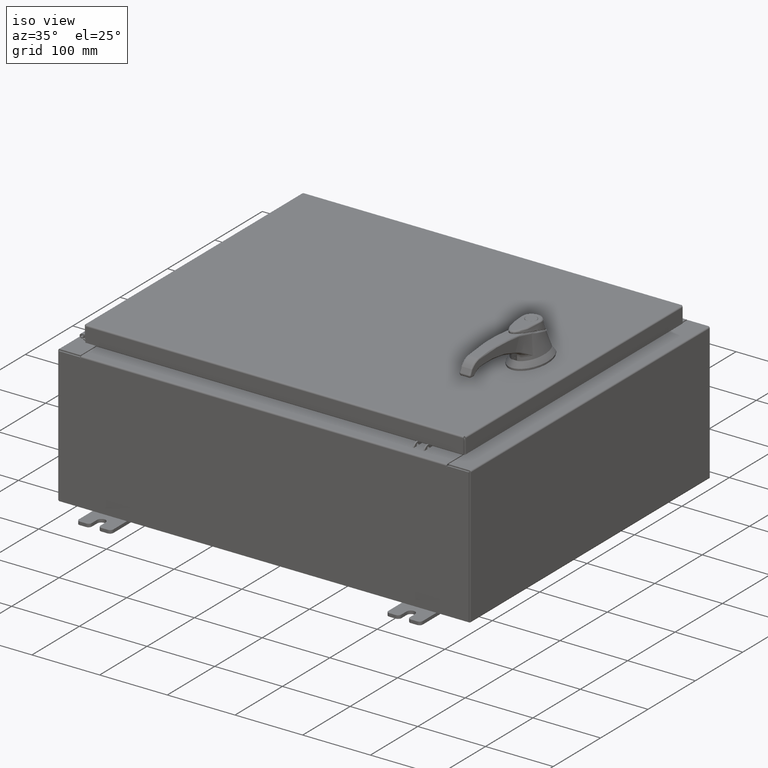
[diagram: clean part render]
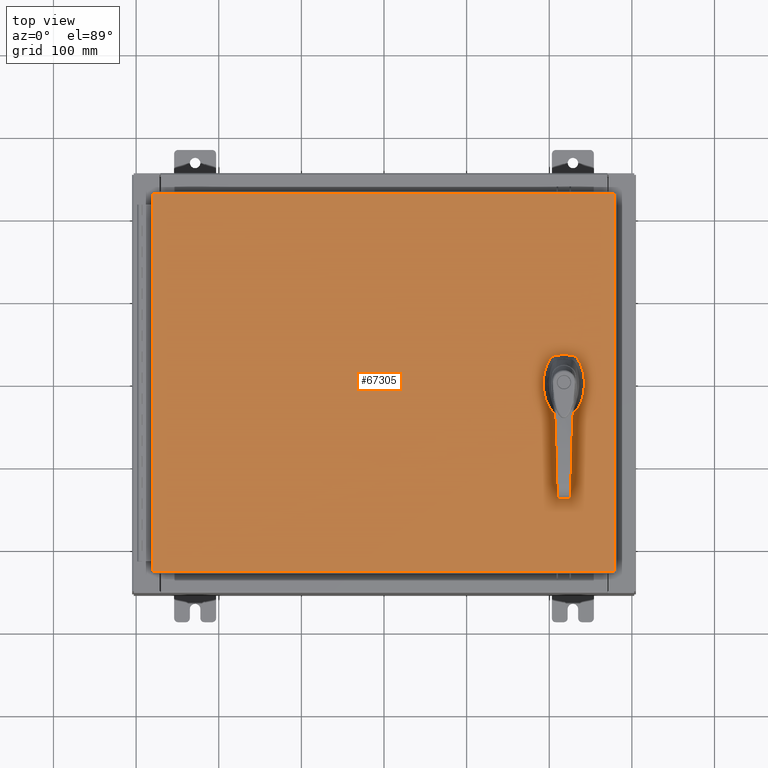
[diagram: tour spotlight — one face highlighted and labeled with its STEP entity id]
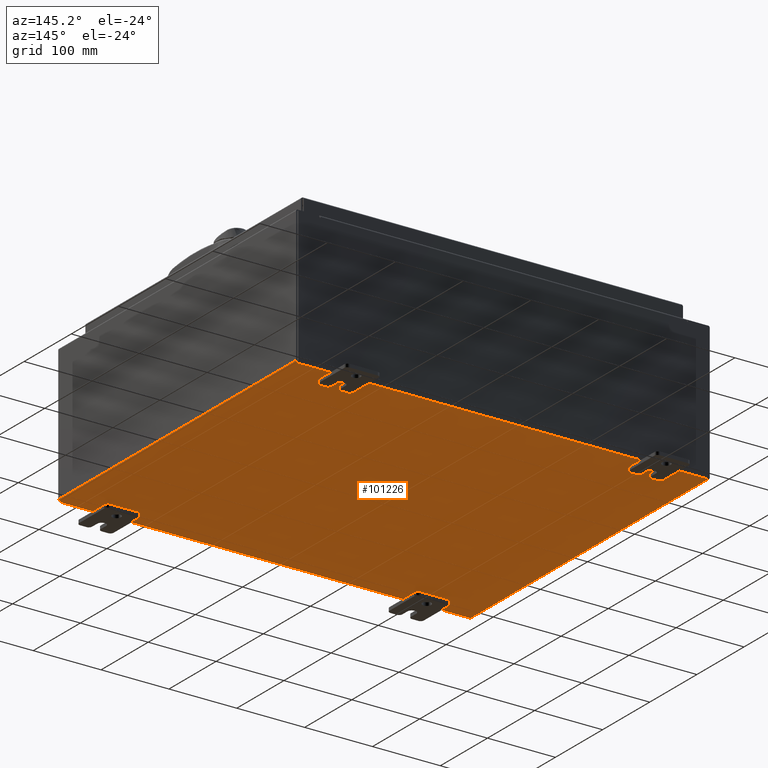
[diagram: tour spotlight — one face highlighted and labeled with its STEP entity id]
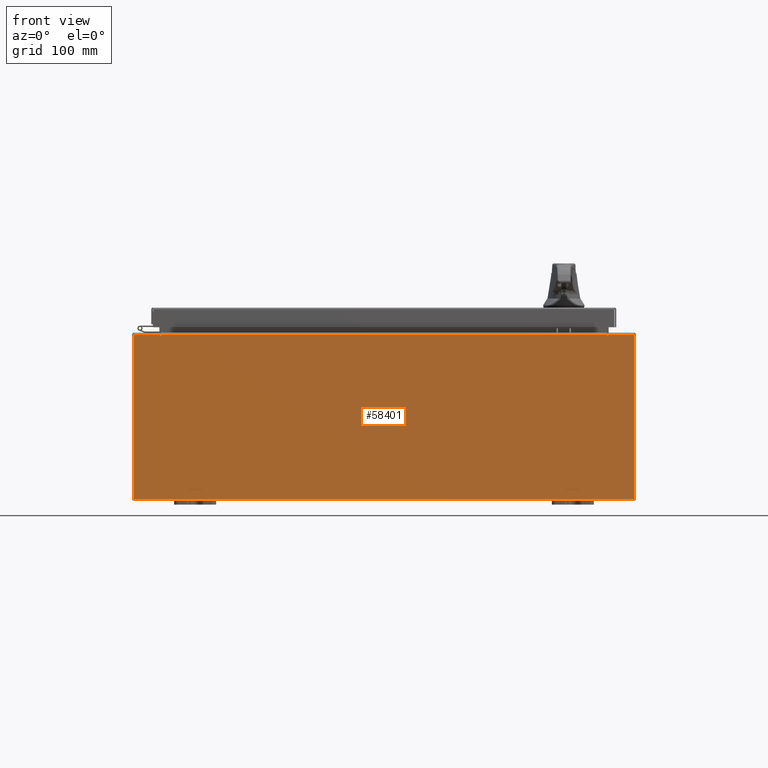
[diagram: tour spotlight — one face highlighted and labeled with its STEP entity id]
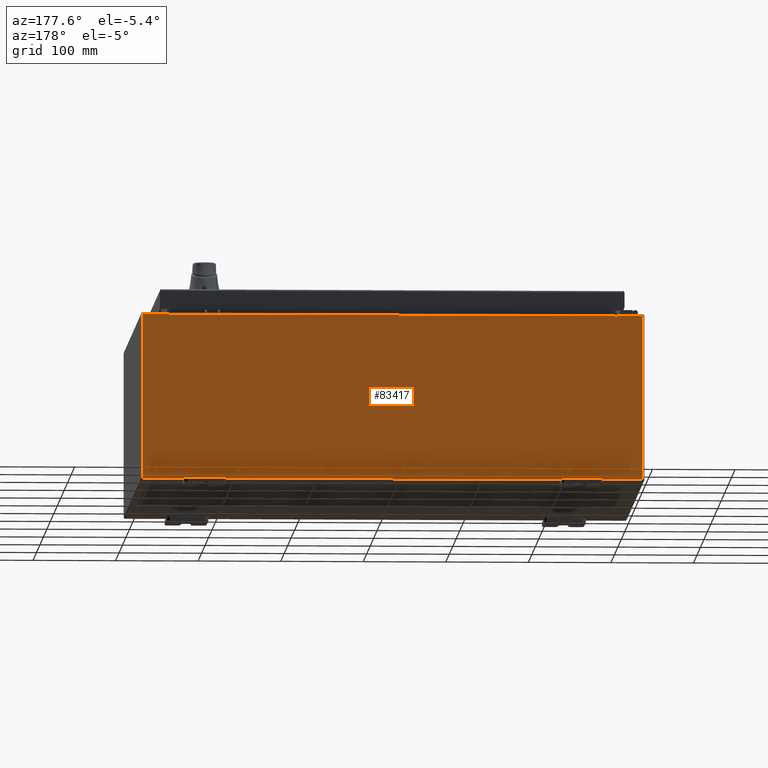
[diagram: tour spotlight — one face highlighted and labeled with its STEP entity id]
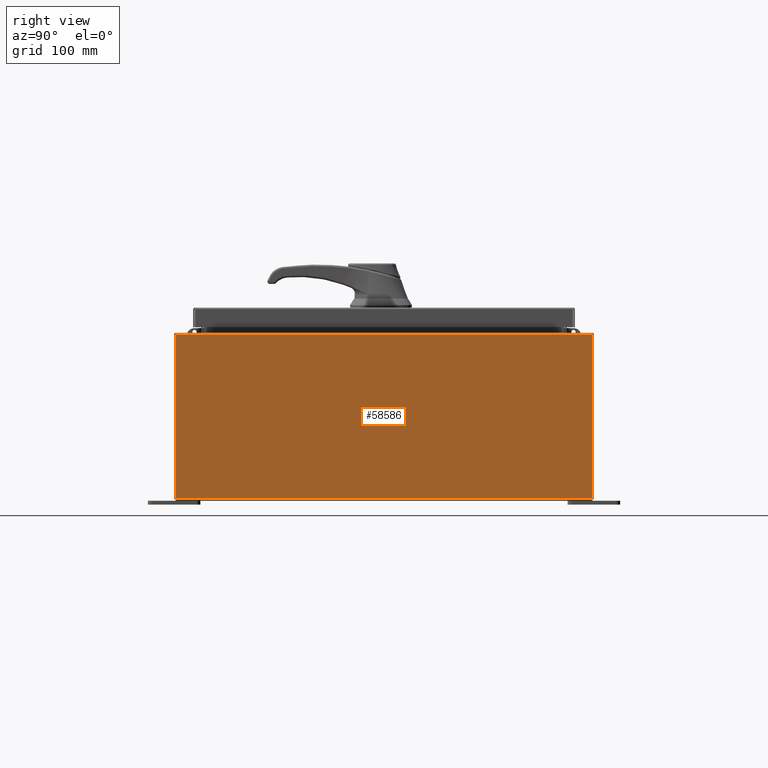
[diagram: tour spotlight — one face highlighted and labeled with its STEP entity id]
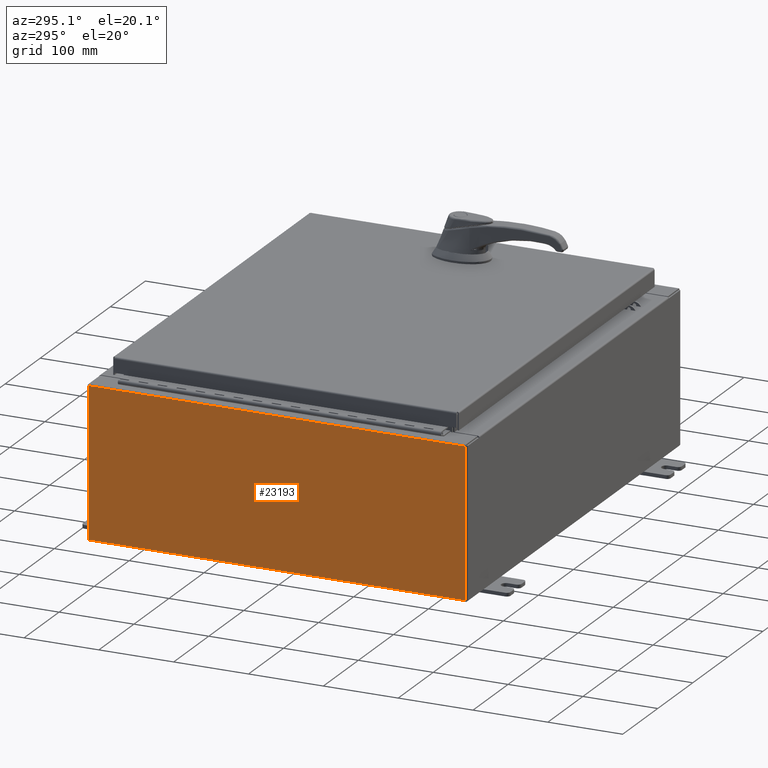
[diagram: tour spotlight — one face highlighted and labeled with its STEP entity id]
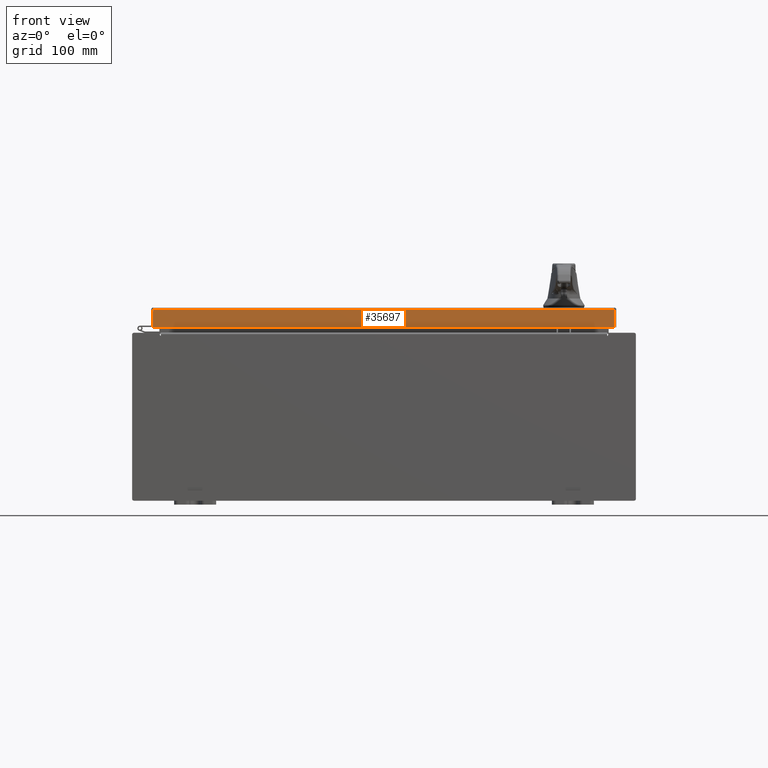
[diagram: tour spotlight — one face highlighted and labeled with its STEP entity id]
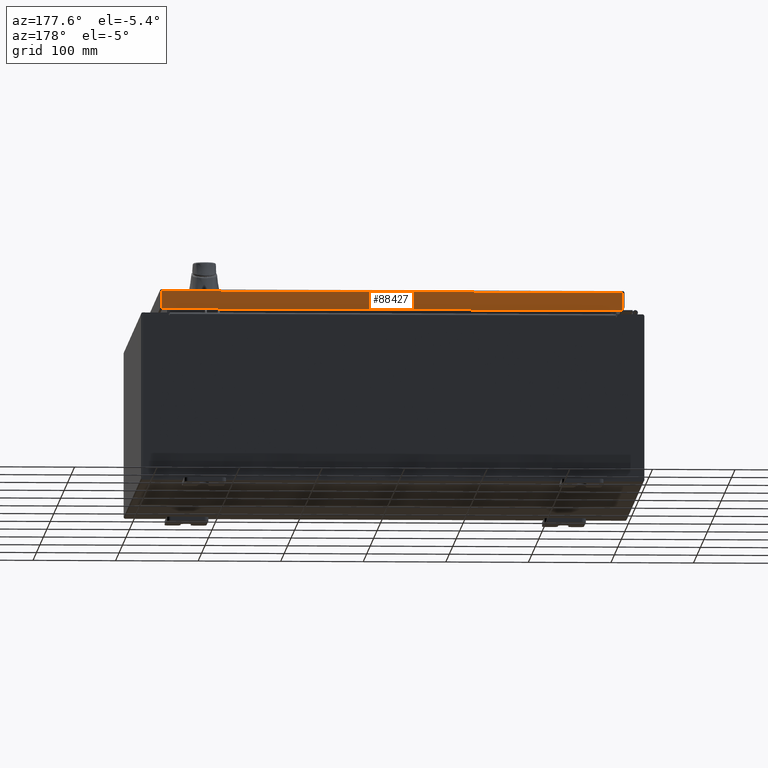
[diagram: tour spotlight — one face highlighted and labeled with its STEP entity id]
A machine part: a face-by-face anatomy tour. The part has 2402 B-rep faces; the first image is the clean iso view, then the 8 largest visible faces are spotlighted one at a time (largest first), each with its STEP entity span.

Face 1 — top view, entity #67305. In plain terms, the highlighted planar face has unit normal (0, 0, -1).
Definition (entity closure, byte-faithful):
#105 = CARTESIAN_POINT ( 'NONE',  ( 8.778227370756310300, -0.4029999999999252000, 0.0000000000000000000 ) ) ;
#553 = CARTESIAN_POINT ( 'NONE',  ( -10.99030000000000000, 9.006299999999999500, -2.048885995248197400E-016 ) ) ;
#791 = DIRECTION ( 'NONE',  ( -0.0000000000000000000, 0.0000000000000000000, 1.000000000000000000 ) ) ;
#1286 = DIRECTION ( 'NONE',  ( -0.0000000000000000000, 0.0000000000000000000, 1.000000000000000000 ) ) ;
#1395 = AXIS2_PLACEMENT_3D ( 'NONE', #67690, #16633, #76271 ) ;
#1616 = EDGE_CURVE ( 'NONE', #31356, #62189, #65204, .T. ) ;
#1728 = CARTESIAN_POINT ( 'NONE',  ( 10.99030000000000000, -9.006299999999999500, -2.048885995248197400E-016 ) ) ;
#1891 = VERTEX_POINT ( 'NONE', #49131 ) ;
#4028 = DIRECTION ( 'NONE',  ( 1.000000000000000000, 0.0000000000000000000, 0.0000000000000000000 ) ) ;
#6315 = DIRECTION ( 'NONE',  ( -0.0000000000000000000, 0.0000000000000000000, 1.000000000000000000 ) ) ;
#7730 = CARTESIAN_POINT ( 'NONE',  ( 8.406499999999999400, -1.338000000000000100, 0.0000000000000000000 ) ) ;
#7807 = FACE_BOUND ( 'NONE', #70670, .T. ) ;
#8465 = VERTEX_POINT ( 'NONE', #27106 ) ;
#9132 = DIRECTION ( 'NONE',  ( 0.0000000000000000000, -1.000000000000000000, 0.0000000000000000000 ) ) ;
#9672 = ORIENTED_EDGE ( 'NONE', *, *, #16028, .F. ) ;
#10136 = LINE ( 'NONE', #553, #98250 ) ;
#11146 = VERTEX_POINT ( 'NONE', #90328 ) ;
#12602 = CARTESIAN_POINT ( 'NONE',  ( 0.0000000000000000000, 0.0000000000000000000, 0.0000000000000000000 ) ) ;
#12967 = PLANE ( 'NONE',  #49220 ) ;
#15743 = AXIS2_PLACEMENT_3D ( 'NONE', #57363, #6315, #65872 ) ;
#16028 = EDGE_CURVE ( 'NONE', #35135, #11146, #72373, .T. ) ;
#16633 = DIRECTION ( 'NONE',  ( -0.0000000000000000000, 0.0000000000000000000, 1.000000000000000000 ) ) ;
#17601 = CARTESIAN_POINT ( 'NONE',  ( 0.0000000000000000000, -0.4029999999999252000, 0.0000000000000000000 ) ) ;
#19397 = ORIENTED_EDGE ( 'NONE', *, *, #53710, .F. ) ;
#19667 = EDGE_CURVE ( 'NONE', #61317, #28780, #21213, .T. ) ;
#19898 = VECTOR ( 'NONE', #78995, 39.37007874015748100 ) ;
#21208 = ORIENTED_EDGE ( 'NONE', *, *, #69469, .F. ) ;
#21213 = CIRCLE ( 'NONE', #68312, 0.1715000000000011500 ) ;
#21482 = VECTOR ( 'NONE', #107760, 39.37007874015748100 ) ;
#21507 = DIRECTION ( 'NONE',  ( 0.0000000000000000000, 0.0000000000000000000, -1.000000000000000000 ) ) ;
#23015 = ORIENTED_EDGE ( 'NONE', *, *, #44518, .F. ) ;
#23036 = ORIENTED_EDGE ( 'NONE', *, *, #34596, .T. ) ;
#23111 = CARTESIAN_POINT ( 'NONE',  ( 0.0000000000000000000, 0.4029999999999252000, 0.0000000000000000000 ) ) ;
#23959 = CIRCLE ( 'NONE', #54281, 0.4499999999999156900 ) ;
#27106 = CARTESIAN_POINT ( 'NONE',  ( -10.99030000000000000, -9.006299999999999500, -2.219626494852214000E-016 ) ) ;
#28780 = VERTEX_POINT ( 'NONE', #49090 ) ;
#29016 = CIRCLE ( 'NONE', #93204, 0.4499999999999156900 ) ;
#29028 = VECTOR ( 'NONE', #44206, 39.37007874015748100 ) ;
#31356 = VERTEX_POINT ( 'NONE', #97873 ) ;
#34596 = EDGE_CURVE ( 'NONE', #8465, #1891, #87925, .T. ) ;
#35135 = VERTEX_POINT ( 'NONE', #49375 ) ;
#37988 = EDGE_LOOP ( 'NONE', ( #23036, #99443, #40841, #73170 ) ) ;
#38089 = EDGE_CURVE ( 'NONE', #62189, #8465, #10136, .T. ) ;
#39712 = CIRCLE ( 'NONE', #1395, 0.1715000000000011500 ) ;
#40841 = ORIENTED_EDGE ( 'NONE', *, *, #1616, .T. ) ;
#42529 = VECTOR ( 'NONE', #107202, 39.37007874015748100 ) ;
#43588 = DIRECTION ( 'NONE',  ( -0.0000000000000000000, 0.0000000000000000000, 1.000000000000000000 ) ) ;
#44206 = DIRECTION ( 'NONE',  ( 0.0000000000000000000, 1.000000000000000000, 0.0000000000000000000 ) ) ;
#44518 = EDGE_CURVE ( 'NONE', #50225, #78297, #29016, .T. ) ;
#46061 = VECTOR ( 'NONE', #77263, 39.37007874015748100 ) ;
#46225 = ORIENTED_EDGE ( 'NONE', *, *, #49164, .F. ) ;
#46842 = CARTESIAN_POINT ( 'NONE',  ( 8.175000000000073500, 0.0000000000000000000, 0.0000000000000000000 ) ) ;
#48485 = ORIENTED_EDGE ( 'NONE', *, *, #67627, .F. ) ;
#49090 = CARTESIAN_POINT ( 'NONE',  ( 8.749500000000001200, -1.338000000000000100, 0.0000000000000000000 ) ) ;
#49131 = CARTESIAN_POINT ( 'NONE',  ( 10.99030000000000000, -9.006299999999999500, -2.048885995248197400E-016 ) ) ;
#49164 = EDGE_CURVE ( 'NONE', #110198, #35135, #91063, .T. ) ;
#49220 = AXIS2_PLACEMENT_3D ( 'NONE', #12602, #21507, #81161 ) ;
#49375 = CARTESIAN_POINT ( 'NONE',  ( 8.175000000000073500, -0.2002273707563079800, 0.0000000000000000000 ) ) ;
#50225 = VERTEX_POINT ( 'NONE', #75001 ) ;
#51831 = CARTESIAN_POINT ( 'NONE',  ( 8.577999999999999400, 0.0000000000000000000, 0.0000000000000000000 ) ) ;
#51980 = EDGE_CURVE ( 'NONE', #50225, #57913, #109731, .T. ) ;
#52326 = CARTESIAN_POINT ( 'NONE',  ( 8.577999999999999400, -1.338000000000000100, 0.0000000000000000000 ) ) ;
#53104 = FACE_OUTER_BOUND ( 'NONE', #37988, .T. ) ;
#53710 = EDGE_CURVE ( 'NONE', #92235, #110198, #23959, .T. ) ;
#54281 = AXIS2_PLACEMENT_3D ( 'NONE', #106302, #55048, #4028 ) ;
#55048 = DIRECTION ( 'NONE',  ( -0.0000000000000000000, 0.0000000000000000000, 1.000000000000000000 ) ) ;
#55400 = ORIENTED_EDGE ( 'NONE', *, *, #19667, .F. ) ;
#56301 = EDGE_CURVE ( 'NONE', #1891, #31356, #102540, .T. ) ;
#56486 = CARTESIAN_POINT ( 'NONE',  ( 8.980999999999925300, 2.450686610769032800E-014, 0.0000000000000000000 ) ) ;
#57363 = CARTESIAN_POINT ( 'NONE',  ( 8.577999999999999400, 0.0000000000000000000, 0.0000000000000000000 ) ) ;
#57913 = VERTEX_POINT ( 'NONE', #78316 ) ;
#60390 = DIRECTION ( 'NONE',  ( 1.000000000000000000, 0.0000000000000000000, 0.0000000000000000000 ) ) ;
#60889 = DIRECTION ( 'NONE',  ( 1.000000000000000000, 0.0000000000000000000, 0.0000000000000000000 ) ) ;
#61317 = VERTEX_POINT ( 'NONE', #7730 ) ;
#62144 = CARTESIAN_POINT ( 'NONE',  ( -10.99030000000000000, 9.006299999999999500, -2.048885995248197400E-016 ) ) ;
#62189 = VERTEX_POINT ( 'NONE', #62144 ) ;
#62214 = CIRCLE ( 'NONE', #15743, 0.4499999999999156900 ) ;
#63611 = DIRECTION ( 'NONE',  ( 0.0000000000000000000, -1.000000000000000000, 0.0000000000000000000 ) ) ;
#65204 = LINE ( 'NONE', #71301, #19898 ) ;
#65872 = DIRECTION ( 'NONE',  ( 1.000000000000000000, 0.0000000000000000000, 0.0000000000000000000 ) ) ;
#66788 = ORIENTED_EDGE ( 'NONE', *, *, #70692, .F. ) ;
#67305 = ADVANCED_FACE ( 'NONE', ( #7807, #53104, #98551 ), #12967, .F. ) ;
#67627 = EDGE_CURVE ( 'NONE', #28780, #61317, #39712, .T. ) ;
#67690 = CARTESIAN_POINT ( 'NONE',  ( 8.577999999999999400, -1.338000000000000100, 0.0000000000000000000 ) ) ;
#68312 = AXIS2_PLACEMENT_3D ( 'NONE', #52326, #1286, #60889 ) ;
#68726 = LINE ( 'NONE', #17601, #46061 ) ;
#69469 = EDGE_CURVE ( 'NONE', #99537, #57913, #62214, .T. ) ;
#70670 = EDGE_LOOP ( 'NONE', ( #48485, #55400 ) ) ;
#70692 = EDGE_CURVE ( 'NONE', #78297, #92235, #96855, .T. ) ;
#70920 = ORIENTED_EDGE ( 'NONE', *, *, #79781, .F. ) ;
#71301 = CARTESIAN_POINT ( 'NONE',  ( 10.99030000000000000, 9.006299999999999500, -2.219626494852214000E-016 ) ) ;
#72373 = CIRCLE ( 'NONE', #108375, 0.4499999999999156900 ) ;
#73170 = ORIENTED_EDGE ( 'NONE', *, *, #38089, .T. ) ;
#75001 = CARTESIAN_POINT ( 'NONE',  ( 8.980999999999925300, 0.2002273707563080300, 0.0000000000000000000 ) ) ;
#76271 = DIRECTION ( 'NONE',  ( 1.000000000000000000, 0.0000000000000000000, 0.0000000000000000000 ) ) ;
#76520 = CARTESIAN_POINT ( 'NONE',  ( 8.377772629243690300, 0.4029999999999252000, 0.0000000000000000000 ) ) ;
#77263 = DIRECTION ( 'NONE',  ( 1.000000000000000000, 0.0000000000000000000, 0.0000000000000000000 ) ) ;
#78297 = VERTEX_POINT ( 'NONE', #82557 ) ;
#78316 = CARTESIAN_POINT ( 'NONE',  ( 8.980999999999927000, -0.2002273707563079800, 0.0000000000000000000 ) ) ;
#78995 = DIRECTION ( 'NONE',  ( -1.000000000000000000, -0.0000000000000000000, -0.0000000000000000000 ) ) ;
#79629 = EDGE_LOOP ( 'NONE', ( #110308, #21208, #70920, #9672, #46225, #19397, #66788, #23015 ) ) ;
#79781 = EDGE_CURVE ( 'NONE', #11146, #99537, #68726, .T. ) ;
#81161 = DIRECTION ( 'NONE',  ( -1.000000000000000000, 0.0000000000000000000, -0.0000000000000000000 ) ) ;
#82557 = CARTESIAN_POINT ( 'NONE',  ( 8.778227370756310300, 0.4029999999999252000, 0.0000000000000000000 ) ) ;
#87925 = LINE ( 'NONE', #98178, #42529 ) ;
#90328 = CARTESIAN_POINT ( 'NONE',  ( 8.377772629243690300, -0.4029999999999252000, 0.0000000000000000000 ) ) ;
#91063 = LINE ( 'NONE', #46842, #105850 ) ;
#92235 = VERTEX_POINT ( 'NONE', #76520 ) ;
#93204 = AXIS2_PLACEMENT_3D ( 'NONE', #51831, #791, #60390 ) ;
#93723 = CARTESIAN_POINT ( 'NONE',  ( 8.175000000000073500, 0.2002273707563079800, 0.0000000000000000000 ) ) ;
#94153 = VECTOR ( 'NONE', #108676, 39.37007874015748100 ) ;
#94720 = CARTESIAN_POINT ( 'NONE',  ( 8.577999999999999400, 0.0000000000000000000, 0.0000000000000000000 ) ) ;
#96855 = LINE ( 'NONE', #23111, #94153 ) ;
#97873 = CARTESIAN_POINT ( 'NONE',  ( 10.99030000000000000, 9.006299999999999500, -2.219626494852214000E-016 ) ) ;
#98178 = CARTESIAN_POINT ( 'NONE',  ( -10.99030000000000000, -9.006299999999999500, -2.219626494852214000E-016 ) ) ;
#98250 = VECTOR ( 'NONE', #9132, 39.37007874015748100 ) ;
#98551 = FACE_BOUND ( 'NONE', #79629, .T. ) ;
#99443 = ORIENTED_EDGE ( 'NONE', *, *, #56301, .T. ) ;
#99537 = VERTEX_POINT ( 'NONE', #105 ) ;
#102540 = LINE ( 'NONE', #1728, #29028 ) ;
#103372 = DIRECTION ( 'NONE',  ( 1.000000000000000000, 0.0000000000000000000, 0.0000000000000000000 ) ) ;
#105850 = VECTOR ( 'NONE', #63611, 39.37007874015748100 ) ;
#106302 = CARTESIAN_POINT ( 'NONE',  ( 8.577999999999999400, 0.0000000000000000000, 0.0000000000000000000 ) ) ;
#107202 = DIRECTION ( 'NONE',  ( 1.000000000000000000, -0.0000000000000000000, -0.0000000000000000000 ) ) ;
#107760 = DIRECTION ( 'NONE',  ( 2.728745808672812900E-015, -1.000000000000000000, 0.0000000000000000000 ) ) ;
#108375 = AXIS2_PLACEMENT_3D ( 'NONE', #94720, #43588, #103372 ) ;
#108676 = DIRECTION ( 'NONE',  ( -1.000000000000000000, 0.0000000000000000000, 0.0000000000000000000 ) ) ;
#109731 = LINE ( 'NONE', #56486, #21482 ) ;
#110198 = VERTEX_POINT ( 'NONE', #93723 ) ;
#110308 = ORIENTED_EDGE ( 'NONE', *, *, #51980, .T. ) ;

Face 2 — auxiliary view, entity #101226. In plain terms, the highlighted planar face has unit normal (0, 0, -1).
Definition (entity closure, byte-faithful):
#873 = CARTESIAN_POINT ( 'NONE',  ( 0.0000000000000000000, 0.0000000000000000000, -0.07470000000000000300 ) ) ;
#3405 = ORIENTED_EDGE ( 'NONE', *, *, #47281, .T. ) ;
#6498 = DIRECTION ( 'NONE',  ( -1.000000000000000000, -0.0000000000000000000, -0.0000000000000000000 ) ) ;
#7579 = ORIENTED_EDGE ( 'NONE', *, *, #98166, .T. ) ;
#9425 = DIRECTION ( 'NONE',  ( 0.0000000000000000000, 0.0000000000000000000, -1.000000000000000000 ) ) ;
#12657 = CARTESIAN_POINT ( 'NONE',  ( -11.91230000000000400, 9.925300000000000000, -0.07470000000000000300 ) ) ;
#13976 = VERTEX_POINT ( 'NONE', #64987 ) ;
#14356 = LINE ( 'NONE', #108769, #82364 ) ;
#22963 = DIRECTION ( 'NONE',  ( -0.0000000000000000000, 1.000000000000000000, -0.0000000000000000000 ) ) ;
#27257 = CARTESIAN_POINT ( 'NONE',  ( -11.91230000000000400, -9.925300000000000000, -0.07469999999999994700 ) ) ;
#29346 = DIRECTION ( 'NONE',  ( 1.000000000000000000, 0.0000000000000000000, 0.0000000000000000000 ) ) ;
#29676 = VERTEX_POINT ( 'NONE', #27257 ) ;
#32455 = VERTEX_POINT ( 'NONE', #12657 ) ;
#35144 = LINE ( 'NONE', #105086, #97918 ) ;
#40144 = LINE ( 'NONE', #56935, #65479 ) ;
#47281 = EDGE_CURVE ( 'NONE', #102591, #13976, #35144, .T. ) ;
#54706 = CARTESIAN_POINT ( 'NONE',  ( -12.00000000000000400, -9.925300000000000000, -0.07470000000000000300 ) ) ;
#56396 = EDGE_LOOP ( 'NONE', ( #92833, #7579, #80028, #3405 ) ) ;
#56935 = CARTESIAN_POINT ( 'NONE',  ( -11.91230000000000400, -9.925300000000000000, -0.07469999999999994700 ) ) ;
#64987 = CARTESIAN_POINT ( 'NONE',  ( 11.91229999999998900, -9.925300000000000000, -0.07470000000000000300 ) ) ;
#65479 = VECTOR ( 'NONE', #22963, 39.37007874015748100 ) ;
#67965 = VECTOR ( 'NONE', #29346, 39.37007874015748100 ) ;
#69038 = DIRECTION ( 'NONE',  ( -1.000000000000000000, 0.0000000000000000000, -0.0000000000000000000 ) ) ;
#70050 = CARTESIAN_POINT ( 'NONE',  ( 11.91229999999999800, 9.925299999999996500, -0.07469999999999994700 ) ) ;
#80028 = ORIENTED_EDGE ( 'NONE', *, *, #89115, .F. ) ;
#82364 = VECTOR ( 'NONE', #6498, 39.37007874015748100 ) ;
#87793 = DIRECTION ( 'NONE',  ( -0.0000000000000000000, -1.000000000000000000, -0.0000000000000000000 ) ) ;
#89115 = EDGE_CURVE ( 'NONE', #102591, #32455, #14356, .T. ) ;
#90110 = AXIS2_PLACEMENT_3D ( 'NONE', #873, #9425, #69038 ) ;
#90691 = LINE ( 'NONE', #54706, #67965 ) ;
#92833 = ORIENTED_EDGE ( 'NONE', *, *, #105149, .F. ) ;
#94467 = PLANE ( 'NONE',  #90110 ) ;
#97918 = VECTOR ( 'NONE', #87793, 39.37007874015748100 ) ;
#98166 = EDGE_CURVE ( 'NONE', #29676, #32455, #40144, .T. ) ;
#101226 = ADVANCED_FACE ( 'NONE', ( #105794 ), #94467, .T. ) ;
#102591 = VERTEX_POINT ( 'NONE', #70050 ) ;
#105086 = CARTESIAN_POINT ( 'NONE',  ( 11.91229999999999800, 9.925300000000000000, -0.07469999999999994700 ) ) ;
#105149 = EDGE_CURVE ( 'NONE', #29676, #13976, #90691, .T. ) ;
#105794 = FACE_OUTER_BOUND ( 'NONE', #56396, .T. ) ;
#108769 = CARTESIAN_POINT ( 'NONE',  ( -12.00000000000000400, 9.925300000000000000, -0.07470000000000000300 ) ) ;

Face 3 — front view, entity #58401. In plain terms, the highlighted planar face has unit normal (-0, 1, -0).
Definition (entity closure, byte-faithful):
#31 = DIRECTION ( 'NONE',  ( 0.0000000000000000000, 0.0000000000000000000, -1.000000000000000000 ) ) ;
#934 = EDGE_CURVE ( 'NONE', #83782, #94440, #34649, .T. ) ;
#2827 = CARTESIAN_POINT ( 'NONE',  ( 10.67454999999983300, -0.0000000000000000000, -4.633366117301815000E-013 ) ) ;
#3195 = LINE ( 'NONE', #49596, #48497 ) ;
#3437 = VECTOR ( 'NONE', #55907, 39.37007874015748100 ) ;
#3545 = LINE ( 'NONE', #100242, #46180 ) ;
#3995 = CARTESIAN_POINT ( 'NONE',  ( -11.92530000000000000, 0.0000000000000000000, 3.925299999999999600 ) ) ;
#4859 = VECTOR ( 'NONE', #95157, 39.37007874015748100 ) ;
#11387 = DIRECTION ( 'NONE',  ( -4.340572780400004900E-014, 0.0000000000000000000, -1.000000000000000000 ) ) ;
#12001 = ORIENTED_EDGE ( 'NONE', *, *, #58124, .T. ) ;
#13510 = CARTESIAN_POINT ( 'NONE',  ( 10.65587500000000200, 0.0000000000000000000, 3.874949999999999700 ) ) ;
#13911 = ORIENTED_EDGE ( 'NONE', *, *, #52424, .F. ) ;
#14608 = CARTESIAN_POINT ( 'NONE',  ( -10.63720000000000400, -0.0000000000000000000, 3.874949999999999700 ) ) ;
#14716 = EDGE_CURVE ( 'NONE', #39919, #48412, #3195, .T. ) ;
#16778 = EDGE_CURVE ( 'NONE', #48412, #39062, #60274, .T. ) ;
#18487 = CARTESIAN_POINT ( 'NONE',  ( 10.67455000000000200, 0.0000000000000000000, 3.925299999999999600 ) ) ;
#19642 = ORIENTED_EDGE ( 'NONE', *, *, #86915, .F. ) ;
#22051 = DIRECTION ( 'NONE',  ( 0.0000000000000000000, 0.0000000000000000000, -1.000000000000000000 ) ) ;
#22679 = CARTESIAN_POINT ( 'NONE',  ( 10.67455000000000200, 0.0000000000000000000, 3.874949999999999700 ) ) ;
#22705 = CARTESIAN_POINT ( 'NONE',  ( 11.92530000000000000, 0.0000000000000000000, -3.925299999999999600 ) ) ;
#26457 = CARTESIAN_POINT ( 'NONE',  ( -11.92530000000000000, 0.0000000000000000000, 3.925299999999999600 ) ) ;
#26498 = ORIENTED_EDGE ( 'NONE', *, *, #14716, .T. ) ;
#27740 = LINE ( 'NONE', #80194, #45056 ) ;
#28268 = ORIENTED_EDGE ( 'NONE', *, *, #38873, .T. ) ;
#33132 = DIRECTION ( 'NONE',  ( 0.0000000000000000000, -0.0000000000000000000, -1.000000000000000000 ) ) ;
#34649 = CIRCLE ( 'NONE', #109646, 0.01867499999999949400 ) ;
#35922 = VECTOR ( 'NONE', #92678, 39.37007874015748100 ) ;
#37803 = EDGE_CURVE ( 'NONE', #94440, #39062, #3545, .T. ) ;
#38873 = EDGE_CURVE ( 'NONE', #84981, #73588, #80718, .T. ) ;
#39062 = VERTEX_POINT ( 'NONE', #43524 ) ;
#39919 = VERTEX_POINT ( 'NONE', #94616 ) ;
#42797 = CIRCLE ( 'NONE', #72081, 0.01867499999999949400 ) ;
#43524 = CARTESIAN_POINT ( 'NONE',  ( -10.67455000000000200, 0.0000000000000000000, 3.925299999999999600 ) ) ;
#44120 = EDGE_CURVE ( 'NONE', #110048, #76256, #27740, .T. ) ;
#45056 = VECTOR ( 'NONE', #45901, 39.37007874015748100 ) ;
#45901 = DIRECTION ( 'NONE',  ( 1.000000000000000000, 0.0000000000000000000, 0.0000000000000000000 ) ) ;
#45996 = EDGE_CURVE ( 'NONE', #110048, #83782, #52851, .T. ) ;
#46180 = VECTOR ( 'NONE', #49050, 39.37007874015748100 ) ;
#47888 = CARTESIAN_POINT ( 'NONE',  ( 10.63720000000000400, 0.0000000000000000000, 0.0000000000000000000 ) ) ;
#48412 = VERTEX_POINT ( 'NONE', #70984 ) ;
#48497 = VECTOR ( 'NONE', #109430, 39.37007874015748100 ) ;
#49050 = DIRECTION ( 'NONE',  ( 0.0000000000000000000, 0.0000000000000000000, 1.000000000000000000 ) ) ;
#49596 = CARTESIAN_POINT ( 'NONE',  ( -11.92530000000000000, 0.0000000000000000000, 3.925299999999999600 ) ) ;
#49896 = PLANE ( 'NONE',  #73027 ) ;
#50789 = VERTEX_POINT ( 'NONE', #22679 ) ;
#52424 = EDGE_CURVE ( 'NONE', #50789, #71711, #42797, .T. ) ;
#52851 = LINE ( 'NONE', #77944, #4859 ) ;
#53000 = VECTOR ( 'NONE', #11387, 39.37007874015748100 ) ;
#54129 = ORIENTED_EDGE ( 'NONE', *, *, #81715, .T. ) ;
#54451 = DIRECTION ( 'NONE',  ( -1.000000000000000000, -0.0000000000000000000, -0.0000000000000000000 ) ) ;
#55018 = DIRECTION ( 'NONE',  ( 1.000000000000000000, 0.0000000000000000000, 0.0000000000000000000 ) ) ;
#55907 = DIRECTION ( 'NONE',  ( 0.0000000000000000000, 0.0000000000000000000, -1.000000000000000000 ) ) ;
#56836 = LINE ( 'NONE', #71609, #76830 ) ;
#58037 = ORIENTED_EDGE ( 'NONE', *, *, #16778, .T. ) ;
#58124 = EDGE_CURVE ( 'NONE', #73588, #39919, #56836, .T. ) ;
#58401 = ADVANCED_FACE ( 'NONE', ( #66109 ), #49896, .F. ) ;
#59290 = DIRECTION ( 'NONE',  ( -0.0000000000000000000, 1.000000000000000000, -0.0000000000000000000 ) ) ;
#60274 = LINE ( 'NONE', #3995, #82952 ) ;
#63576 = ORIENTED_EDGE ( 'NONE', *, *, #934, .F. ) ;
#64799 = CARTESIAN_POINT ( 'NONE',  ( 11.92530000000000000, 0.0000000000000000000, 3.925299999999999600 ) ) ;
#66109 = FACE_OUTER_BOUND ( 'NONE', #83371, .T. ) ;
#67026 = CARTESIAN_POINT ( 'NONE',  ( 0.0000000000000000000, 0.0000000000000000000, 0.0000000000000000000 ) ) ;
#69067 = ORIENTED_EDGE ( 'NONE', *, *, #37803, .F. ) ;
#70194 = CARTESIAN_POINT ( 'NONE',  ( 10.63720000000000400, 0.0000000000000000000, 3.912299999999999700 ) ) ;
#70984 = CARTESIAN_POINT ( 'NONE',  ( -11.92530000000000000, 0.0000000000000000000, 3.925299999999999600 ) ) ;
#71609 = CARTESIAN_POINT ( 'NONE',  ( -11.92530000000000000, 0.0000000000000000000, -3.925299999999999600 ) ) ;
#71711 = VERTEX_POINT ( 'NONE', #104284 ) ;
#72081 = AXIS2_PLACEMENT_3D ( 'NONE', #13510, #73148, #22051 ) ;
#73027 = AXIS2_PLACEMENT_3D ( 'NONE', #67026, #84188, #33132 ) ;
#73148 = DIRECTION ( 'NONE',  ( -0.0000000000000000000, 1.000000000000000000, -0.0000000000000000000 ) ) ;
#73588 = VERTEX_POINT ( 'NONE', #22705 ) ;
#73990 = VERTEX_POINT ( 'NONE', #18487 ) ;
#76256 = VERTEX_POINT ( 'NONE', #70194 ) ;
#76830 = VECTOR ( 'NONE', #54451, 39.37007874015748100 ) ;
#77944 = CARTESIAN_POINT ( 'NONE',  ( -10.63720000000000400, -0.0000000000000000000, 0.0000000000000000000 ) ) ;
#80194 = CARTESIAN_POINT ( 'NONE',  ( -10.63720000000000400, 1.024442997624098700E-016, 3.912299999999999700 ) ) ;
#80388 = CARTESIAN_POINT ( 'NONE',  ( -10.67455000000000200, 0.0000000000000000000, 3.874949999999999700 ) ) ;
#80718 = LINE ( 'NONE', #64799, #3437 ) ;
#81715 = EDGE_CURVE ( 'NONE', #73990, #84981, #83171, .T. ) ;
#82952 = VECTOR ( 'NONE', #55018, 39.37007874015748100 ) ;
#83171 = LINE ( 'NONE', #26457, #100637 ) ;
#83256 = ORIENTED_EDGE ( 'NONE', *, *, #45996, .F. ) ;
#83371 = EDGE_LOOP ( 'NONE', ( #69067, #63576, #83256, #104047, #19642, #13911, #89179, #54129, #28268, #12001, #26498, #58037 ) ) ;
#83634 = CARTESIAN_POINT ( 'NONE',  ( 11.92530000000000000, 0.0000000000000000000, 3.925299999999999600 ) ) ;
#83782 = VERTEX_POINT ( 'NONE', #14608 ) ;
#84188 = DIRECTION ( 'NONE',  ( 0.0000000000000000000, -1.000000000000000000, 0.0000000000000000000 ) ) ;
#84981 = VERTEX_POINT ( 'NONE', #83634 ) ;
#86485 = CARTESIAN_POINT ( 'NONE',  ( -10.65587500000000200, 0.0000000000000000000, 3.874949999999999700 ) ) ;
#86915 = EDGE_CURVE ( 'NONE', #71711, #76256, #104153, .T. ) ;
#89179 = ORIENTED_EDGE ( 'NONE', *, *, #108035, .F. ) ;
#92678 = DIRECTION ( 'NONE',  ( 0.0000000000000000000, 0.0000000000000000000, 1.000000000000000000 ) ) ;
#94440 = VERTEX_POINT ( 'NONE', #80388 ) ;
#94616 = CARTESIAN_POINT ( 'NONE',  ( -11.92530000000000000, 0.0000000000000000000, -3.925299999999999600 ) ) ;
#94740 = DIRECTION ( 'NONE',  ( 1.000000000000000000, 0.0000000000000000000, 0.0000000000000000000 ) ) ;
#95157 = DIRECTION ( 'NONE',  ( 0.0000000000000000000, 0.0000000000000000000, -1.000000000000000000 ) ) ;
#98452 = LINE ( 'NONE', #2827, #53000 ) ;
#100242 = CARTESIAN_POINT ( 'NONE',  ( -10.67455000000000200, -0.0000000000000000000, 0.0000000000000000000 ) ) ;
#100637 = VECTOR ( 'NONE', #94740, 39.37007874015748100 ) ;
#104047 = ORIENTED_EDGE ( 'NONE', *, *, #44120, .T. ) ;
#104153 = LINE ( 'NONE', #47888, #35922 ) ;
#104284 = CARTESIAN_POINT ( 'NONE',  ( 10.63720000000000400, 0.0000000000000000000, 3.874949999999999700 ) ) ;
#108035 = EDGE_CURVE ( 'NONE', #73990, #50789, #98452, .T. ) ;
#109430 = DIRECTION ( 'NONE',  ( -0.0000000000000000000, -0.0000000000000000000, 1.000000000000000000 ) ) ;
#109537 = CARTESIAN_POINT ( 'NONE',  ( -10.63720000000000400, 1.024442997624098700E-016, 3.912299999999999700 ) ) ;
#109646 = AXIS2_PLACEMENT_3D ( 'NONE', #86485, #59290, #31 ) ;
#110048 = VERTEX_POINT ( 'NONE', #109537 ) ;

Face 4 — auxiliary view, entity #83417. In plain terms, the highlighted planar face has unit normal (0, -1, 0).
Definition (entity closure, byte-faithful):
#2001 = CARTESIAN_POINT ( 'NONE',  ( 10.67454999999983300, -0.0000000000000000000, -4.633366117301815000E-013 ) ) ;
#2025 = ORIENTED_EDGE ( 'NONE', *, *, #32406, .F. ) ;
#2382 = DIRECTION ( 'NONE',  ( 0.0000000000000000000, -1.000000000000000000, 0.0000000000000000000 ) ) ;
#3137 = EDGE_CURVE ( 'NONE', #65910, #71580, #10393, .T. ) ;
#4278 = VERTEX_POINT ( 'NONE', #48908 ) ;
#4589 = CARTESIAN_POINT ( 'NONE',  ( -11.92530000000000000, 0.0000000000000000000, 3.925299999999999600 ) ) ;
#7035 = DIRECTION ( 'NONE',  ( -0.0000000000000000000, 1.000000000000000000, -0.0000000000000000000 ) ) ;
#8195 = LINE ( 'NONE', #74281, #22787 ) ;
#8462 = DIRECTION ( 'NONE',  ( 1.000000000000000000, 0.0000000000000000000, 0.0000000000000000000 ) ) ;
#8787 = EDGE_CURVE ( 'NONE', #100954, #59625, #47271, .T. ) ;
#8798 = EDGE_CURVE ( 'NONE', #4278, #47063, #67290, .T. ) ;
#9585 = VECTOR ( 'NONE', #80728, 39.37007874015748100 ) ;
#10393 = CIRCLE ( 'NONE', #35947, 0.01867499999999949400 ) ;
#10573 = DIRECTION ( 'NONE',  ( -4.340572780400004900E-014, 0.0000000000000000000, -1.000000000000000000 ) ) ;
#12844 = EDGE_CURVE ( 'NONE', #71580, #109969, #8195, .T. ) ;
#13454 = ORIENTED_EDGE ( 'NONE', *, *, #12844, .F. ) ;
#13608 = VECTOR ( 'NONE', #73960, 39.37007874015748100 ) ;
#14316 = CARTESIAN_POINT ( 'NONE',  ( -11.92530000000000000, 0.0000000000000000000, 3.925299999999999600 ) ) ;
#15060 = CARTESIAN_POINT ( 'NONE',  ( -10.63720000000000400, 1.024442997624098700E-016, 3.912299999999999700 ) ) ;
#16783 = EDGE_CURVE ( 'NONE', #44910, #61342, #77601, .T. ) ;
#20118 = CIRCLE ( 'NONE', #45307, 0.01867499999999949400 ) ;
#22434 = ORIENTED_EDGE ( 'NONE', *, *, #3137, .F. ) ;
#22787 = VECTOR ( 'NONE', #31778, 39.37007874015748100 ) ;
#23265 = VECTOR ( 'NONE', #10573, 39.37007874015748100 ) ;
#24007 = VERTEX_POINT ( 'NONE', #67860 ) ;
#24620 = VECTOR ( 'NONE', #65758, 39.37007874015748100 ) ;
#25696 = EDGE_CURVE ( 'NONE', #88559, #47063, #75266, .T. ) ;
#27114 = VERTEX_POINT ( 'NONE', #82030 ) ;
#29176 = CARTESIAN_POINT ( 'NONE',  ( 11.92530000000000000, 0.0000000000000000000, -3.925299999999999600 ) ) ;
#31440 = DIRECTION ( 'NONE',  ( 0.0000000000000000000, 0.0000000000000000000, -1.000000000000000000 ) ) ;
#31778 = DIRECTION ( 'NONE',  ( 0.0000000000000000000, 0.0000000000000000000, 1.000000000000000000 ) ) ;
#31890 = DIRECTION ( 'NONE',  ( 0.0000000000000000000, 0.0000000000000000000, 1.000000000000000000 ) ) ;
#32406 = EDGE_CURVE ( 'NONE', #59625, #4278, #20118, .T. ) ;
#35947 = AXIS2_PLACEMENT_3D ( 'NONE', #58080, #7035, #66626 ) ;
#36272 = LINE ( 'NONE', #14316, #13608 ) ;
#36497 = VECTOR ( 'NONE', #31440, 39.37007874015748100 ) ;
#39101 = CARTESIAN_POINT ( 'NONE',  ( -11.92530000000000000, 0.0000000000000000000, 3.925299999999999600 ) ) ;
#39149 = LINE ( 'NONE', #82502, #36497 ) ;
#41556 = ORIENTED_EDGE ( 'NONE', *, *, #16783, .T. ) ;
#42994 = CARTESIAN_POINT ( 'NONE',  ( 10.63720000000000400, 0.0000000000000000000, 3.874949999999999700 ) ) ;
#44010 = ORIENTED_EDGE ( 'NONE', *, *, #84189, .T. ) ;
#44910 = VERTEX_POINT ( 'NONE', #29176 ) ;
#45307 = AXIS2_PLACEMENT_3D ( 'NONE', #97355, #46207, #106013 ) ;
#46207 = DIRECTION ( 'NONE',  ( -0.0000000000000000000, 1.000000000000000000, -0.0000000000000000000 ) ) ;
#47063 = VERTEX_POINT ( 'NONE', #48302 ) ;
#47271 = LINE ( 'NONE', #48654, #24620 ) ;
#48302 = CARTESIAN_POINT ( 'NONE',  ( -10.67455000000000200, 0.0000000000000000000, 3.925299999999999600 ) ) ;
#48654 = CARTESIAN_POINT ( 'NONE',  ( -10.63720000000000400, -0.0000000000000000000, 0.0000000000000000000 ) ) ;
#48908 = CARTESIAN_POINT ( 'NONE',  ( -10.67455000000000200, 0.0000000000000000000, 3.874949999999999700 ) ) ;
#53428 = CARTESIAN_POINT ( 'NONE',  ( 0.0000000000000000000, 0.0000000000000000000, 0.0000000000000000000 ) ) ;
#55633 = DIRECTION ( 'NONE',  ( 1.000000000000000000, 0.0000000000000000000, 0.0000000000000000000 ) ) ;
#58080 = CARTESIAN_POINT ( 'NONE',  ( 10.65587500000000200, 0.0000000000000000000, 3.874949999999999700 ) ) ;
#59625 = VERTEX_POINT ( 'NONE', #95130 ) ;
#61292 = ORIENTED_EDGE ( 'NONE', *, *, #25696, .T. ) ;
#61342 = VERTEX_POINT ( 'NONE', #93112 ) ;
#61978 = DIRECTION ( 'NONE',  ( 0.0000000000000000000, -0.0000000000000000000, -1.000000000000000000 ) ) ;
#62947 = CARTESIAN_POINT ( 'NONE',  ( 10.67455000000000200, 0.0000000000000000000, 3.874949999999999700 ) ) ;
#65758 = DIRECTION ( 'NONE',  ( 0.0000000000000000000, 0.0000000000000000000, -1.000000000000000000 ) ) ;
#65910 = VERTEX_POINT ( 'NONE', #62947 ) ;
#66626 = DIRECTION ( 'NONE',  ( 0.0000000000000000000, 0.0000000000000000000, -1.000000000000000000 ) ) ;
#67290 = LINE ( 'NONE', #100229, #89992 ) ;
#67617 = ORIENTED_EDGE ( 'NONE', *, *, #100877, .T. ) ;
#67860 = CARTESIAN_POINT ( 'NONE',  ( 10.67455000000000200, 0.0000000000000000000, 3.925299999999999600 ) ) ;
#68082 = CARTESIAN_POINT ( 'NONE',  ( -10.63720000000000400, 1.024442997624098700E-016, 3.912299999999999700 ) ) ;
#69351 = AXIS2_PLACEMENT_3D ( 'NONE', #53428, #2382, #61978 ) ;
#70203 = PLANE ( 'NONE',  #69351 ) ;
#71580 = VERTEX_POINT ( 'NONE', #42994 ) ;
#71726 = EDGE_CURVE ( 'NONE', #24007, #65910, #91347, .T. ) ;
#72182 = CARTESIAN_POINT ( 'NONE',  ( -11.92530000000000000, 0.0000000000000000000, -3.925299999999999600 ) ) ;
#73960 = DIRECTION ( 'NONE',  ( 1.000000000000000000, 0.0000000000000000000, 0.0000000000000000000 ) ) ;
#74281 = CARTESIAN_POINT ( 'NONE',  ( 10.63720000000000400, 0.0000000000000000000, 0.0000000000000000000 ) ) ;
#75266 = LINE ( 'NONE', #4589, #77925 ) ;
#75993 = ORIENTED_EDGE ( 'NONE', *, *, #8787, .F. ) ;
#77601 = LINE ( 'NONE', #72182, #9585 ) ;
#77882 = VECTOR ( 'NONE', #90242, 39.37007874015748100 ) ;
#77925 = VECTOR ( 'NONE', #55633, 39.37007874015748100 ) ;
#80551 = LINE ( 'NONE', #39101, #77882 ) ;
#80728 = DIRECTION ( 'NONE',  ( -1.000000000000000000, -0.0000000000000000000, -0.0000000000000000000 ) ) ;
#82030 = CARTESIAN_POINT ( 'NONE',  ( 11.92530000000000000, 0.0000000000000000000, 3.925299999999999600 ) ) ;
#82502 = CARTESIAN_POINT ( 'NONE',  ( 11.92530000000000000, 0.0000000000000000000, 3.925299999999999600 ) ) ;
#83417 = ADVANCED_FACE ( 'NONE', ( #93716 ), #70203, .F. ) ;
#84189 = EDGE_CURVE ( 'NONE', #100954, #109969, #107110, .T. ) ;
#84252 = VECTOR ( 'NONE', #8462, 39.37007874015748100 ) ;
#84700 = ORIENTED_EDGE ( 'NONE', *, *, #93386, .T. ) ;
#87216 = EDGE_LOOP ( 'NONE', ( #105732, #2025, #75993, #44010, #13454, #22434, #104224, #67617, #96759, #41556, #84700, #61292 ) ) ;
#88031 = CARTESIAN_POINT ( 'NONE',  ( -11.92530000000000000, 0.0000000000000000000, 3.925299999999999600 ) ) ;
#88559 = VERTEX_POINT ( 'NONE', #88031 ) ;
#89992 = VECTOR ( 'NONE', #31890, 39.37007874015748100 ) ;
#90242 = DIRECTION ( 'NONE',  ( -0.0000000000000000000, -0.0000000000000000000, 1.000000000000000000 ) ) ;
#91347 = LINE ( 'NONE', #2001, #23265 ) ;
#93112 = CARTESIAN_POINT ( 'NONE',  ( -11.92530000000000000, 0.0000000000000000000, -3.925299999999999600 ) ) ;
#93386 = EDGE_CURVE ( 'NONE', #61342, #88559, #80551, .T. ) ;
#93716 = FACE_OUTER_BOUND ( 'NONE', #87216, .T. ) ;
#95130 = CARTESIAN_POINT ( 'NONE',  ( -10.63720000000000400, -0.0000000000000000000, 3.874949999999999700 ) ) ;
#95211 = EDGE_CURVE ( 'NONE', #27114, #44910, #39149, .T. ) ;
#96759 = ORIENTED_EDGE ( 'NONE', *, *, #95211, .T. ) ;
#97355 = CARTESIAN_POINT ( 'NONE',  ( -10.65587500000000200, 0.0000000000000000000, 3.874949999999999700 ) ) ;
#100229 = CARTESIAN_POINT ( 'NONE',  ( -10.67455000000000200, -0.0000000000000000000, 0.0000000000000000000 ) ) ;
#100877 = EDGE_CURVE ( 'NONE', #24007, #27114, #36272, .T. ) ;
#100954 = VERTEX_POINT ( 'NONE', #15060 ) ;
#104224 = ORIENTED_EDGE ( 'NONE', *, *, #71726, .F. ) ;
#105732 = ORIENTED_EDGE ( 'NONE', *, *, #8798, .F. ) ;
#106013 = DIRECTION ( 'NONE',  ( 0.0000000000000000000, 0.0000000000000000000, -1.000000000000000000 ) ) ;
#107110 = LINE ( 'NONE', #68082, #84252 ) ;
#108784 = CARTESIAN_POINT ( 'NONE',  ( 10.63720000000000400, 0.0000000000000000000, 3.912299999999999700 ) ) ;
#109969 = VERTEX_POINT ( 'NONE', #108784 ) ;

Face 5 — right view, entity #58586. In plain terms, the highlighted planar face has unit normal (-1, 0, 0).
Definition (entity closure, byte-faithful):
#87 = CARTESIAN_POINT ( 'NONE',  ( 11.99999999999999800, -9.925300000000001800, 0.01299999999999984700 ) ) ;
#4480 = VERTEX_POINT ( 'NONE', #86602 ) ;
#9785 = VECTOR ( 'NONE', #27939, 39.37007874015748100 ) ;
#11663 = EDGE_CURVE ( 'NONE', #17819, #4480, #101810, .T. ) ;
#12462 = LINE ( 'NONE', #36093, #9785 ) ;
#13746 = AXIS2_PLACEMENT_3D ( 'NONE', #26372, #34942, #94669 ) ;
#15010 = EDGE_CURVE ( 'NONE', #4480, #73846, #12462, .T. ) ;
#17159 = CARTESIAN_POINT ( 'NONE',  ( 11.99999999999999800, 9.925300000000000000, -4.054232992619533500E-014 ) ) ;
#17819 = VERTEX_POINT ( 'NONE', #86500 ) ;
#26372 = CARTESIAN_POINT ( 'NONE',  ( 11.99999999999999800, 0.0000000000000000000, -4.327932773236200600E-014 ) ) ;
#27939 = DIRECTION ( 'NONE',  ( -3.584876173029202900E-015, 2.757597056176310300E-016, -1.000000000000000000 ) ) ;
#29255 = VECTOR ( 'NONE', #59723, 39.37007874015748100 ) ;
#33836 = ORIENTED_EDGE ( 'NONE', *, *, #104200, .F. ) ;
#34942 = DIRECTION ( 'NONE',  ( -1.000000000000000000, 0.0000000000000000000, 3.584876173029202900E-015 ) ) ;
#36093 = CARTESIAN_POINT ( 'NONE',  ( 11.99999999999999800, -9.925300000000000000, -4.601632553852868400E-014 ) ) ;
#36104 = DIRECTION ( 'NONE',  ( 3.584876173029202900E-015, -2.757597056176310300E-016, 1.000000000000000000 ) ) ;
#36277 = VECTOR ( 'NONE', #72335, 39.37007874015748100 ) ;
#39082 = CARTESIAN_POINT ( 'NONE',  ( 12.00000000000002700, 9.925299999999992900, 7.837599999999999200 ) ) ;
#49017 = VERTEX_POINT ( 'NONE', #96919 ) ;
#49256 = LINE ( 'NONE', #87, #29255 ) ;
#49402 = ORIENTED_EDGE ( 'NONE', *, *, #65724, .T. ) ;
#58586 = ADVANCED_FACE ( 'NONE', ( #80772 ), #77472, .F. ) ;
#59150 = CARTESIAN_POINT ( 'NONE',  ( 11.99999999999999800, -9.925300000000000000, 0.01299999999999983600 ) ) ;
#59723 = DIRECTION ( 'NONE',  ( -0.0000000000000000000, -1.000000000000000000, -0.0000000000000000000 ) ) ;
#65724 = EDGE_CURVE ( 'NONE', #49017, #17819, #103955, .T. ) ;
#67945 = EDGE_LOOP ( 'NONE', ( #100361, #71625, #33836, #49402 ) ) ;
#71625 = ORIENTED_EDGE ( 'NONE', *, *, #15010, .T. ) ;
#72335 = DIRECTION ( 'NONE',  ( -0.0000000000000000000, -1.000000000000000000, -0.0000000000000000000 ) ) ;
#73846 = VERTEX_POINT ( 'NONE', #59150 ) ;
#77472 = PLANE ( 'NONE',  #13746 ) ;
#80772 = FACE_OUTER_BOUND ( 'NONE', #67945, .T. ) ;
#86500 = CARTESIAN_POINT ( 'NONE',  ( 12.00000000000002700, 9.925299999999991100, 7.837599999999999200 ) ) ;
#86602 = CARTESIAN_POINT ( 'NONE',  ( 12.00000000000002700, -9.925300000000001800, 7.837599999999999200 ) ) ;
#94669 = DIRECTION ( 'NONE',  ( 3.584876173029202900E-015, 0.0000000000000000000, 1.000000000000000000 ) ) ;
#96919 = CARTESIAN_POINT ( 'NONE',  ( 11.99999999999999800, 9.925299999999998200, 0.01299999999999984700 ) ) ;
#100361 = ORIENTED_EDGE ( 'NONE', *, *, #11663, .T. ) ;
#101256 = VECTOR ( 'NONE', #36104, 39.37007874015748100 ) ;
#101810 = LINE ( 'NONE', #39082, #36277 ) ;
#103955 = LINE ( 'NONE', #17159, #101256 ) ;
#104200 = EDGE_CURVE ( 'NONE', #49017, #73846, #49256, .T. ) ;

Face 6 — auxiliary view, entity #23193. In plain terms, the highlighted planar face has unit normal (1, 0, 0).
Definition (entity closure, byte-faithful):
#4629 = VERTEX_POINT ( 'NONE', #64482 ) ;
#11834 = CARTESIAN_POINT ( 'NONE',  ( -12.00000000000000400, 0.0000000000000000000, -4.327932773236202500E-014 ) ) ;
#12677 = CARTESIAN_POINT ( 'NONE',  ( -12.00000000000000400, -9.925299999999998200, 0.01299999999999984700 ) ) ;
#14022 = VERTEX_POINT ( 'NONE', #73974 ) ;
#14657 = CARTESIAN_POINT ( 'NONE',  ( -12.00000000000000400, -9.925300000000000000, -4.601632553852869700E-014 ) ) ;
#19234 = EDGE_CURVE ( 'NONE', #62979, #14022, #60061, .T. ) ;
#20356 = CARTESIAN_POINT ( 'NONE',  ( -12.00000000000003200, -9.925300000000000000, 7.837599999999999200 ) ) ;
#23193 = ADVANCED_FACE ( 'NONE', ( #91593 ), #80020, .F. ) ;
#26723 = ORIENTED_EDGE ( 'NONE', *, *, #97469, .T. ) ;
#27958 = EDGE_LOOP ( 'NONE', ( #31975, #46149, #90723, #26723 ) ) ;
#31567 = CARTESIAN_POINT ( 'NONE',  ( -12.00000000000000400, 9.925299999999998200, 0.01299999999999984700 ) ) ;
#31975 = ORIENTED_EDGE ( 'NONE', *, *, #19234, .T. ) ;
#32253 = VECTOR ( 'NONE', #83955, 39.37007874015748100 ) ;
#40121 = DIRECTION ( 'NONE',  ( -0.0000000000000000000, 1.000000000000000000, -0.0000000000000000000 ) ) ;
#46149 = ORIENTED_EDGE ( 'NONE', *, *, #107441, .T. ) ;
#48090 = DIRECTION ( 'NONE',  ( 3.584876173029202900E-015, 2.757597056176310300E-016, -1.000000000000000000 ) ) ;
#49061 = LINE ( 'NONE', #107933, #71748 ) ;
#50720 = VERTEX_POINT ( 'NONE', #12677 ) ;
#54679 = DIRECTION ( 'NONE',  ( 3.584876173029202900E-015, 0.0000000000000000000, -1.000000000000000000 ) ) ;
#60061 = LINE ( 'NONE', #20356, #88030 ) ;
#62852 = LINE ( 'NONE', #31567, #105704 ) ;
#62979 = VERTEX_POINT ( 'NONE', #79151 ) ;
#64482 = CARTESIAN_POINT ( 'NONE',  ( -12.00000000000000400, 9.925300000000000000, 0.01299999999999983600 ) ) ;
#71748 = VECTOR ( 'NONE', #48090, 39.37007874015748100 ) ;
#73974 = CARTESIAN_POINT ( 'NONE',  ( -12.00000000000003200, 9.925299999999996500, 7.837599999999999200 ) ) ;
#79151 = CARTESIAN_POINT ( 'NONE',  ( -12.00000000000003200, -9.925300000000000000, 7.837599999999999200 ) ) ;
#80020 = PLANE ( 'NONE',  #99277 ) ;
#83955 = DIRECTION ( 'NONE',  ( -3.584876173029202900E-015, -2.757597056176310300E-016, 1.000000000000000000 ) ) ;
#88030 = VECTOR ( 'NONE', #97243, 39.37007874015748100 ) ;
#90723 = ORIENTED_EDGE ( 'NONE', *, *, #98175, .F. ) ;
#91593 = FACE_OUTER_BOUND ( 'NONE', #27958, .T. ) ;
#97243 = DIRECTION ( 'NONE',  ( 0.0000000000000000000, 1.000000000000000000, 0.0000000000000000000 ) ) ;
#97469 = EDGE_CURVE ( 'NONE', #50720, #62979, #100402, .T. ) ;
#98175 = EDGE_CURVE ( 'NONE', #50720, #4629, #62852, .T. ) ;
#99277 = AXIS2_PLACEMENT_3D ( 'NONE', #11834, #105903, #54679 ) ;
#100402 = LINE ( 'NONE', #14657, #32253 ) ;
#105704 = VECTOR ( 'NONE', #40121, 39.37007874015748100 ) ;
#105903 = DIRECTION ( 'NONE',  ( 1.000000000000000000, 0.0000000000000000000, 3.584876173029202900E-015 ) ) ;
#107441 = EDGE_CURVE ( 'NONE', #14022, #4629, #49061, .T. ) ;
#107933 = CARTESIAN_POINT ( 'NONE',  ( -12.00000000000000400, 9.925300000000000000, -4.054232992619534800E-014 ) ) ;

Face 7 — front view, entity #35697. In plain terms, the highlighted planar face has unit normal (-0, 1, -0).
Definition (entity closure, byte-faithful):
#373 = EDGE_CURVE ( 'NONE', #37049, #78667, #58735, .T. ) ;
#6360 = EDGE_LOOP ( 'NONE', ( #48684, #76852, #75975, #92744 ) ) ;
#11756 = FACE_OUTER_BOUND ( 'NONE', #6360, .T. ) ;
#11888 = VERTEX_POINT ( 'NONE', #33495 ) ;
#26274 = DIRECTION ( 'NONE',  ( -1.000000000000000000, 8.758115402030108600E-047, 1.233005954894504400E-016 ) ) ;
#26567 = DIRECTION ( 'NONE',  ( -0.0000000000000000000, -3.798629886902798700E-015, -1.000000000000000000 ) ) ;
#26940 = CARTESIAN_POINT ( 'NONE',  ( 10.98915786437626900, -9.093999999999999400, -0.07469999999999972500 ) ) ;
#27132 = VECTOR ( 'NONE', #97687, 39.37007874015748100 ) ;
#29741 = DIRECTION ( 'NONE',  ( -4.683733270991387600E-031, 1.000000000000000000, -3.798629886902798700E-015 ) ) ;
#33314 = DIRECTION ( 'NONE',  ( 0.0000000000000000000, -3.798629886902798700E-015, -1.000000000000000000 ) ) ;
#33495 = CARTESIAN_POINT ( 'NONE',  ( -10.98915786437626700, -9.093999999999999400, -0.08769999999999997200 ) ) ;
#35697 = ADVANCED_FACE ( 'NONE', ( #11756 ), #55100, .F. ) ;
#37049 = VERTEX_POINT ( 'NONE', #79696 ) ;
#37929 = CARTESIAN_POINT ( 'NONE',  ( 11.07799999999999900, -9.093999999999999400, -0.08769999999999997200 ) ) ;
#38143 = CARTESIAN_POINT ( 'NONE',  ( 11.07799999999999900, -9.094000000000003000, -0.9376999999999997600 ) ) ;
#42228 = CARTESIAN_POINT ( 'NONE',  ( -10.98915786437626900, -9.093999999999999400, 3.480555384750563700E-014 ) ) ;
#43724 = EDGE_CURVE ( 'NONE', #11888, #78667, #46416, .T. ) ;
#46416 = LINE ( 'NONE', #42228, #86452 ) ;
#48065 = CARTESIAN_POINT ( 'NONE',  ( -10.98915786437626700, -9.094000000000003000, -0.9376999999999970900 ) ) ;
#48684 = ORIENTED_EDGE ( 'NONE', *, *, #81883, .F. ) ;
#51692 = CARTESIAN_POINT ( 'NONE',  ( 10.98915786437626700, -9.093999999999999400, -0.08769999999999997200 ) ) ;
#55100 = PLANE ( 'NONE',  #107149 ) ;
#58735 = LINE ( 'NONE', #38143, #104237 ) ;
#62767 = LINE ( 'NONE', #26940, #90824 ) ;
#75975 = ORIENTED_EDGE ( 'NONE', *, *, #373, .F. ) ;
#76427 = VERTEX_POINT ( 'NONE', #51692 ) ;
#76852 = ORIENTED_EDGE ( 'NONE', *, *, #43724, .T. ) ;
#78667 = VERTEX_POINT ( 'NONE', #48065 ) ;
#79696 = CARTESIAN_POINT ( 'NONE',  ( 10.98915786437626900, -9.094000000000003000, -0.9376999999999997600 ) ) ;
#80816 = CARTESIAN_POINT ( 'NONE',  ( 4.259387036639567100E-030, -9.093999999999999400, 3.480555384750563700E-014 ) ) ;
#81883 = EDGE_CURVE ( 'NONE', #11888, #76427, #97889, .T. ) ;
#85509 = EDGE_CURVE ( 'NONE', #76427, #37049, #62767, .T. ) ;
#86452 = VECTOR ( 'NONE', #33314, 39.37007874015748100 ) ;
#89415 = DIRECTION ( 'NONE',  ( 0.0000000000000000000, 3.798629886902798700E-015, 1.000000000000000000 ) ) ;
#90824 = VECTOR ( 'NONE', #26567, 39.37007874015748100 ) ;
#92744 = ORIENTED_EDGE ( 'NONE', *, *, #85509, .F. ) ;
#97687 = DIRECTION ( 'NONE',  ( 1.000000000000000000, 4.683733270991387600E-031, -1.796675691135460100E-045 ) ) ;
#97889 = LINE ( 'NONE', #37929, #27132 ) ;
#104237 = VECTOR ( 'NONE', #26274, 39.37007874015748100 ) ;
#107149 = AXIS2_PLACEMENT_3D ( 'NONE', #80816, #29741, #89415 ) ;

Face 8 — auxiliary view, entity #88427. In plain terms, the highlighted planar face has unit normal (0, -1, -0).
Definition (entity closure, byte-faithful):
#3835 = CARTESIAN_POINT ( 'NONE',  ( -10.98915786437626900, 9.093999999999999400, -0.07469999999999972500 ) ) ;
#8333 = CARTESIAN_POINT ( 'NONE',  ( -10.98915786437626900, 9.094000000000003000, -0.9377000000000025300 ) ) ;
#10485 = CARTESIAN_POINT ( 'NONE',  ( -4.259387036639555200E-030, 9.093999999999999400, 3.480555384750553600E-014 ) ) ;
#12368 = DIRECTION ( 'NONE',  ( -0.0000000000000000000, 3.798629886902787700E-015, -1.000000000000000000 ) ) ;
#15358 = CARTESIAN_POINT ( 'NONE',  ( 10.98915786437626700, 9.094000000000003000, -0.9376999999999997600 ) ) ;
#16819 = CARTESIAN_POINT ( 'NONE',  ( -11.07799999999999900, 9.093999999999999400, -0.08769999999999997200 ) ) ;
#19037 = DIRECTION ( 'NONE',  ( 0.0000000000000000000, 3.798629886902787700E-015, -1.000000000000000000 ) ) ;
#20008 = VERTEX_POINT ( 'NONE', #15358 ) ;
#21462 = VECTOR ( 'NONE', #38352, 39.37007874015748100 ) ;
#23136 = AXIS2_PLACEMENT_3D ( 'NONE', #10485, #70106, #19037 ) ;
#23565 = EDGE_LOOP ( 'NONE', ( #42609, #28451, #89289, #55717 ) ) ;
#25974 = EDGE_CURVE ( 'NONE', #31463, #53100, #58228, .T. ) ;
#28451 = ORIENTED_EDGE ( 'NONE', *, *, #52469, .T. ) ;
#31463 = VERTEX_POINT ( 'NONE', #107290 ) ;
#38352 = DIRECTION ( 'NONE',  ( 1.000000000000000000, -8.758115402030108600E-047, 1.233005954894504400E-016 ) ) ;
#42609 = ORIENTED_EDGE ( 'NONE', *, *, #25974, .F. ) ;
#50724 = EDGE_CURVE ( 'NONE', #82901, #20008, #89533, .T. ) ;
#52469 = EDGE_CURVE ( 'NONE', #31463, #20008, #85479, .T. ) ;
#53100 = VERTEX_POINT ( 'NONE', #72334 ) ;
#55316 = LINE ( 'NONE', #3835, #100817 ) ;
#55717 = ORIENTED_EDGE ( 'NONE', *, *, #92455, .F. ) ;
#58228 = LINE ( 'NONE', #16819, #80863 ) ;
#62802 = VECTOR ( 'NONE', #107618, 39.37007874015748100 ) ;
#69097 = FACE_OUTER_BOUND ( 'NONE', #23565, .T. ) ;
#70106 = DIRECTION ( 'NONE',  ( 4.683733270991374400E-031, -1.000000000000000000, -3.798629886902787700E-015 ) ) ;
#72334 = CARTESIAN_POINT ( 'NONE',  ( -10.98915786437626700, 9.093999999999999400, -0.08769999999999997200 ) ) ;
#76439 = DIRECTION ( 'NONE',  ( -1.000000000000000000, -4.683733270991374400E-031, -1.796675691135454900E-045 ) ) ;
#78310 = PLANE ( 'NONE',  #23136 ) ;
#80863 = VECTOR ( 'NONE', #76439, 39.37007874015748100 ) ;
#80871 = CARTESIAN_POINT ( 'NONE',  ( -11.07799999999999900, 9.094000000000003000, -0.9377000000000025300 ) ) ;
#80973 = CARTESIAN_POINT ( 'NONE',  ( 10.98915786437626900, 9.093999999999999400, 3.480555384750553600E-014 ) ) ;
#82901 = VERTEX_POINT ( 'NONE', #8333 ) ;
#85479 = LINE ( 'NONE', #80973, #62802 ) ;
#88427 = ADVANCED_FACE ( 'NONE', ( #69097 ), #78310, .F. ) ;
#89289 = ORIENTED_EDGE ( 'NONE', *, *, #50724, .F. ) ;
#89533 = LINE ( 'NONE', #80871, #21462 ) ;
#92455 = EDGE_CURVE ( 'NONE', #53100, #82901, #55316, .T. ) ;
#100817 = VECTOR ( 'NONE', #12368, 39.37007874015748100 ) ;
#107290 = CARTESIAN_POINT ( 'NONE',  ( 10.98915786437626700, 9.093999999999999400, -0.08769999999999997200 ) ) ;
#107618 = DIRECTION ( 'NONE',  ( 0.0000000000000000000, 3.798629886902787700E-015, -1.000000000000000000 ) ) ;